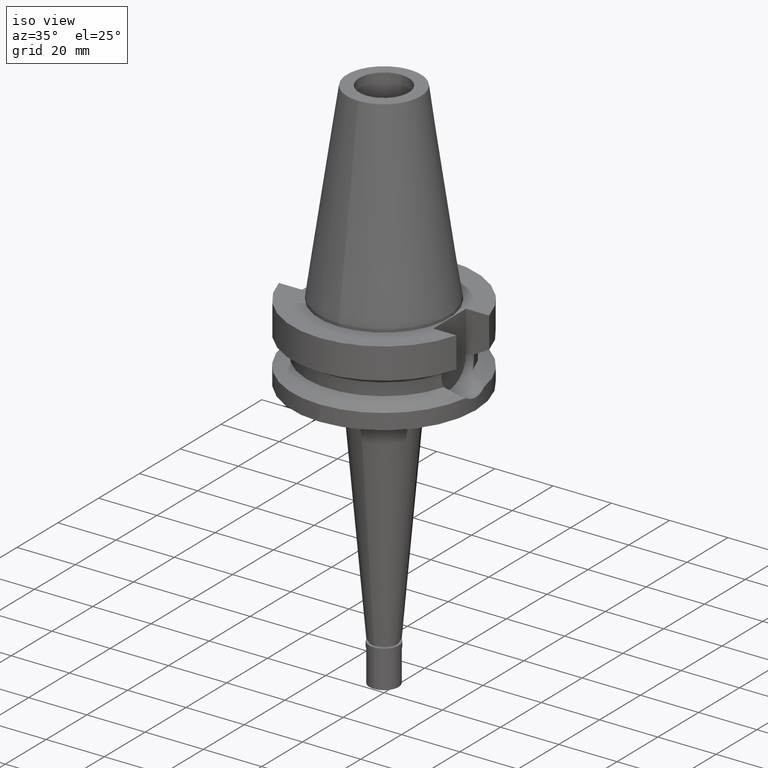
[diagram: clean part render]
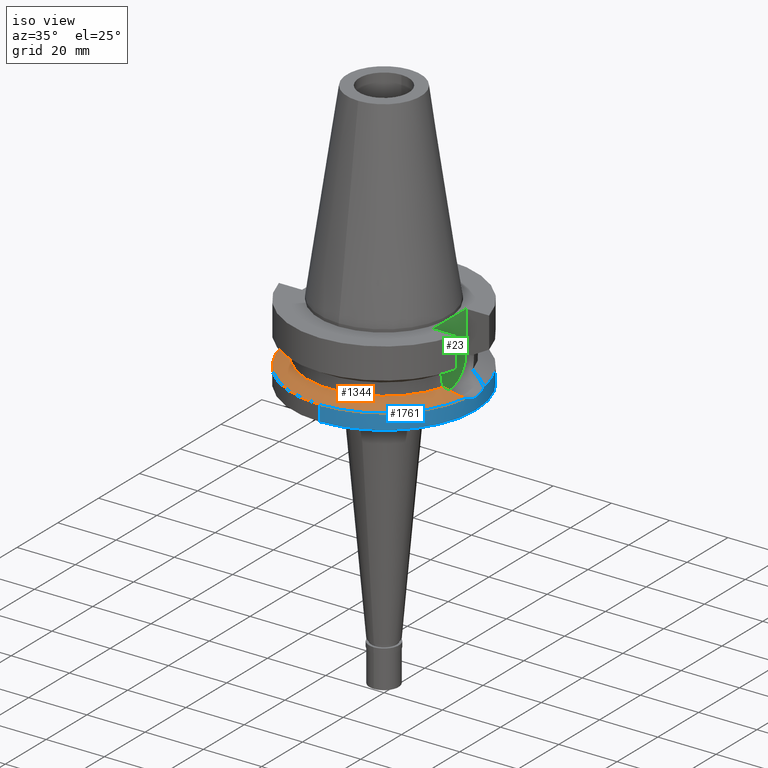
[diagram: same view with three faces highlighted in distinct colors, each labeled with its STEP entity id]
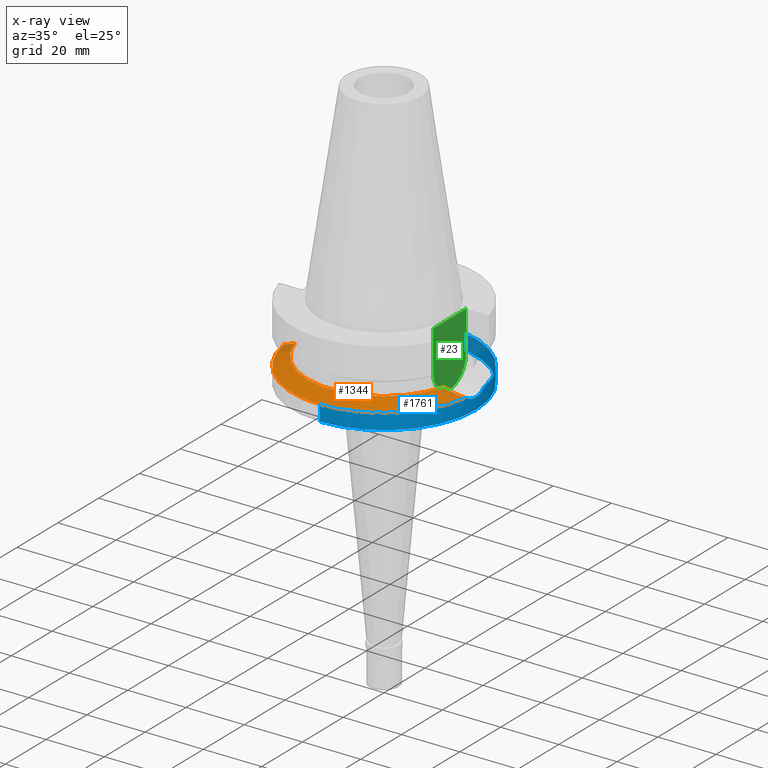
[diagram: x-ray of the same camera — body ghosted, the three highlighted faces saturated]
A machine part, iso view with three faces highlighted in distinct colors.
The next image is the same camera in x-ray (body ghosted, the three faces saturated) — at least one of them is partly hidden behind the body in this view.
Their STEP definitions:

[orange] entity #1344 — the highlighted conical surface has half-angle 60 deg.
#43 = DIRECTION ( 'NONE',  ( 0.0000000000000000000, 0.0000000000000000000, -1.000000000000000000 ) ) ;
#52 = CARTESIAN_POINT ( 'NONE',  ( -27.66923168270367839, -6.418355678338386383, -19.84419804764732831 ) ) ;
#178 = DIRECTION ( 'NONE',  ( -0.9634623335000935818, -0.2678438573619981722, 0.0000000000000000000 ) ) ;
#208 = CARTESIAN_POINT ( 'NONE',  ( 0.0000000000000000000, 0.0000000000000000000, -18.74774300138999905 ) ) ;
#225 = CARTESIAN_POINT ( 'NONE',  ( -28.64526499557311823, -5.976604019844140581, -20.34291875265063254 ) ) ;
#233 = CARTESIAN_POINT ( 'NONE',  ( 28.35327672572121216, -6.108695028975740904, -20.19338929592815646 ) ) ;
#237 = DIRECTION ( 'NONE',  ( 0.0000000000000000000, 0.0000000000000000000, -1.000000000000000000 ) ) ;
#271 = CARTESIAN_POINT ( 'NONE',  ( 26.16758111891441985, -6.923083646073821207, -19.07439865895905839 ) ) ;
#314 = CARTESIAN_POINT ( 'NONE',  ( 0.0000000000000000000, -31.50000000000000000, -21.63449434733000132 ) ) ;
#435 = ORIENTED_EDGE ( 'NONE', *, *, #2005, .F. ) ;
#463 = CIRCLE ( 'NONE', #2674, 31.50000000000000000 ) ;
#501 = CARTESIAN_POINT ( 'NONE',  ( -29.52702429806037543, -5.539940414574471284, -20.79313038544429304 ) ) ;
#525 = B_SPLINE_CURVE_WITH_KNOTS ( 'NONE', 3,
 ( #754, #2581, #2596, #1607, #501, #1665, #744, #2126, #225, #1827, #1404, #2114, #1171, #52, #2553, #1376 ),
 .UNSPECIFIED., .F., .F.,
 ( 4, 2, 2, 1, 1, 1, 1, 2, 2, 4 ),
 ( 0.0000000000000000000, 0.2499999999999527045, 0.3749999999999296674, 0.4374999999999184541, 0.4687499999999134026, 0.4843749999999115152, 0.4921874999999115152, 0.4960937499999116818, 0.4999999999999119593, 1.000000000000000000 ),
 .UNSPECIFIED. ) ;
#654 = ORIENTED_EDGE ( 'NONE', *, *, #1530, .F. ) ;
#726 = AXIS2_PLACEMENT_3D ( 'NONE', #1190, #43, #1409 ) ;
#733 = CARTESIAN_POINT ( 'NONE',  ( 28.71614756699908710, -5.944580103074494026, -20.37870454098128903 ) ) ;
#744 = CARTESIAN_POINT ( 'NONE',  ( -28.98042808992395436, -5.818649135274985618, -20.51412779464057934 ) ) ;
#754 = CARTESIAN_POINT ( 'NONE',  ( -31.17899877608999759, -4.485536235554000051, -21.63449434733000132 ) ) ;
#1049 = EDGE_CURVE ( 'NONE', #2364, #2929, #2504, .T. ) ;
#1139 = CIRCLE ( 'NONE', #2282, 26.49999999999998224 ) ;
#1171 = CARTESIAN_POINT ( 'NONE',  ( -28.53802843560052693, -6.025522421294017050, -20.28812707477617394 ) ) ;
#1190 = CARTESIAN_POINT ( 'NONE',  ( 0.0000000000000000000, 0.0000000000000000000, -21.63449434733000132 ) ) ;
#1211 = CARTESIAN_POINT ( 'NONE',  ( 0.0000000000000000000, 0.0000000000000000000, -20.19111867435999841 ) ) ;
#1285 = CARTESIAN_POINT ( 'NONE',  ( -31.17899877608999759, -4.485536235554000051, -21.63449434733000132 ) ) ;
#1322 = CARTESIAN_POINT ( 'NONE',  ( 0.0000000000000000000, 0.0000000000000000000, -21.63449434733000132 ) ) ;
#1344 = ADVANCED_FACE ( 'NONE', ( #2852 ), #2333, .T. ) ;
#1376 = CARTESIAN_POINT ( 'NONE',  ( -25.53175183775000079, -7.097862220092999941, -18.74774300138999905 ) ) ;
#1404 = CARTESIAN_POINT ( 'NONE',  ( -28.56396734956526728, -6.013755435471196620, -20.30138081996641830 ) ) ;
#1408 = CARTESIAN_POINT ( 'NONE',  ( 28.59590262570323560, -6.000111666179638092, -20.31730344391500509 ) ) ;
#1409 = DIRECTION ( 'NONE',  ( 0.9898094849552905306, -0.1423979757318985240, 0.0000000000000000000 ) ) ;
#1432 = CARTESIAN_POINT ( 'NONE',  ( 26.76038826259300762, -6.731321514917747884, -19.37857400506706540 ) ) ;
#1435 = VERTEX_POINT ( 'NONE', #1718 ) ;
#1448 = CARTESIAN_POINT ( 'NONE',  ( -25.53175183775000079, -7.097862220092999941, -18.74774300138999905 ) ) ;
#1530 = EDGE_CURVE ( 'NONE', #2068, #1435, #1139, .T. ) ;
#1547 = CARTESIAN_POINT ( 'NONE',  ( 30.52782197189510782, -4.979563659789108421, -21.30298416905803904 ) ) ;
#1607 = CARTESIAN_POINT ( 'NONE',  ( -29.75795388173753508, -5.412905063019707086, -20.91089799567518526 ) ) ;
#1608 = CARTESIAN_POINT ( 'NONE',  ( 27.84920274060711876, -6.322347482687470155, -19.93583393079281407 ) ) ;
#1665 = CARTESIAN_POINT ( 'NONE',  ( -29.16519869690874955, -5.726424710368712923, -20.60846385170595241 ) ) ;
#1718 = CARTESIAN_POINT ( 'NONE',  ( 25.53175183775000079, -7.097862220092999941, -18.74774300138999905 ) ) ;
#1743 = EDGE_CURVE ( 'NONE', #2277, #2068, #525, .T. ) ;
#1767 = B_SPLINE_CURVE_WITH_KNOTS ( 'NONE', 3,
 ( #2569, #271, #1432, #2803, #1608, #2127, #233, #1408, #733, #2314, #1547, #2045 ),
 .UNSPECIFIED., .F., .F.,
 ( 4, 2, 2, 2, 2, 4 ),
 ( 0.0000000000000000000, 0.2500000000000017764, 0.3750000000000029976, 0.4375000000000036082, 0.5000000000000042188, 1.000000000000000000 ),
 .UNSPECIFIED. ) ;
#1827 = CARTESIAN_POINT ( 'NONE',  ( -28.58841993550401739, -6.002629741559436738, -20.31387488415084519 ) ) ;
#1899 = ORIENTED_EDGE ( 'NONE', *, *, #1743, .F. ) ;
#1995 = AXIS2_PLACEMENT_3D ( 'NONE', #1211, #2147, #2121 ) ;
#2005 = EDGE_CURVE ( 'NONE', #1435, #2364, #1767, .T. ) ;
#2045 = CARTESIAN_POINT ( 'NONE',  ( 31.17899877608999759, -4.485536235554000051, -21.63449434733000132 ) ) ;
#2068 = VERTEX_POINT ( 'NONE', #1448 ) ;
#2114 = CARTESIAN_POINT ( 'NONE',  ( -28.54764553286440076, -6.021166268360699902, -20.29304107103054378 ) ) ;
#2121 = DIRECTION ( 'NONE',  ( 0.0000000000000000000, -1.000000000000000000, 0.0000000000000000000 ) ) ;
#2126 = CARTESIAN_POINT ( 'NONE',  ( -28.75811122055934987, -5.924292236818231139, -20.40057044343104309 ) ) ;
#2127 = CARTESIAN_POINT ( 'NONE',  ( 28.22927489213733665, -6.162517930489570084, -20.13004847233275640 ) ) ;
#2147 = DIRECTION ( 'NONE',  ( 0.0000000000000000000, 0.0000000000000000000, -1.000000000000000000 ) ) ;
#2277 = VERTEX_POINT ( 'NONE', #1285 ) ;
#2282 = AXIS2_PLACEMENT_3D ( 'NONE', #208, #2948, #178 ) ;
#2314 = CARTESIAN_POINT ( 'NONE',  ( 29.74497633816733710, -5.455130845604892365, -20.90411165047239095 ) ) ;
#2322 = ORIENTED_EDGE ( 'NONE', *, *, #2476, .F. ) ;
#2333 = CONICAL_SURFACE ( 'NONE', #1995, 29.00000000000000000, 1.047197551196400456 ) ;
#2364 = VERTEX_POINT ( 'NONE', #2515 ) ;
#2476 = EDGE_CURVE ( 'NONE', #2929, #2277, #463, .T. ) ;
#2504 = CIRCLE ( 'NONE', #726, 31.50000000000001421 ) ;
#2515 = CARTESIAN_POINT ( 'NONE',  ( 31.17899877608999759, -4.485536235554000051, -21.63449434733000132 ) ) ;
#2553 = CARTESIAN_POINT ( 'NONE',  ( -26.66938443627002187, -6.785146512881143011, -19.33219882239237464 ) ) ;
#2569 = CARTESIAN_POINT ( 'NONE',  ( 25.53175183775000079, -7.097862220092999941, -18.74774300138999905 ) ) ;
#2581 = CARTESIAN_POINT ( 'NONE',  ( -30.82001444630813936, -4.757886390910957886, -21.45173759309954420 ) ) ;
#2596 = CARTESIAN_POINT ( 'NONE',  ( -30.41988018149731587, -5.025176161912223272, -21.24821316614367461 ) ) ;
#2645 = ORIENTED_EDGE ( 'NONE', *, *, #1049, .F. ) ;
#2661 = EDGE_LOOP ( 'NONE', ( #2322, #2645, #435, #654, #1899 ) ) ;
#2674 = AXIS2_PLACEMENT_3D ( 'NONE', #1322, #237, #2719 ) ;
#2719 = DIRECTION ( 'NONE',  ( 0.0000000000000000000, -1.000000000000000000, 0.0000000000000000000 ) ) ;
#2803 = CARTESIAN_POINT ( 'NONE',  ( 27.58506577188217079, -6.426717536307814171, -19.80076447298786135 ) ) ;
#2852 = FACE_OUTER_BOUND ( 'NONE', #2661, .T. ) ;
#2929 = VERTEX_POINT ( 'NONE', #314 ) ;
#2948 = DIRECTION ( 'NONE',  ( 0.0000000000000000000, 0.0000000000000000000, 1.000000000000000000 ) ) ;

[blue] entity #1761 — the highlighted cylindrical surface (partial cylindrical patch) has radius 31.5 mm, axis along (0, 0, -1).
#27 = EDGE_CURVE ( 'NONE', #170, #490, #2061, .T. ) ;
#43 = DIRECTION ( 'NONE',  ( 0.0000000000000000000, 0.0000000000000000000, -1.000000000000000000 ) ) ;
#47 = CARTESIAN_POINT ( 'NONE',  ( 31.27811616776916281, -3.746663410095390834, -22.08609477296984025 ) ) ;
#78 = CARTESIAN_POINT ( 'NONE',  ( 0.0000000000000000000, -31.50000000000000000, -27.00000000000000000 ) ) ;
#145 = CARTESIAN_POINT ( 'NONE',  ( 0.0000000000000000000, -31.50000000000000000, -21.63449434733000132 ) ) ;
#170 = VERTEX_POINT ( 'NONE', #1307 ) ;
#195 = CARTESIAN_POINT ( 'NONE',  ( 31.49278356123978639, 0.7711873036931051750, -22.97267690001503126 ) ) ;
#209 = CARTESIAN_POINT ( 'NONE',  ( 31.33671814113539611, -3.204274407590857354, -22.33747821317917825 ) ) ;
#232 = AXIS2_PLACEMENT_3D ( 'NONE', #1685, #298, #959 ) ;
#279 = ORIENTED_EDGE ( 'NONE', *, *, #2904, .T. ) ;
#298 = DIRECTION ( 'NONE',  ( 0.0000000000000000000, 0.0000000000000000000, -1.000000000000000000 ) ) ;
#314 = CARTESIAN_POINT ( 'NONE',  ( 0.0000000000000000000, -31.50000000000000000, -21.63449434733000132 ) ) ;
#414 = CARTESIAN_POINT ( 'NONE',  ( 31.36324472114687012, 3.008186403774371076, -22.45010119731899678 ) ) ;
#419 = VERTEX_POINT ( 'NONE', #78 ) ;
#430 = CARTESIAN_POINT ( 'NONE',  ( 31.50000030226999570, 4.155497312099999586E-14, -23.00000138148999795 ) ) ;
#431 = CARTESIAN_POINT ( 'NONE',  ( 31.41250465254752555, -2.344685119766516834, -22.65098129005198757 ) ) ;
#482 = CARTESIAN_POINT ( 'NONE',  ( 31.40205153632066271, -2.481143929224092659, -22.60832449609318218 ) ) ;
#490 = VERTEX_POINT ( 'NONE', #1346 ) ;
#620 = CARTESIAN_POINT ( 'NONE',  ( 31.50000030226999570, 4.155497312099999586E-14, -23.00000138148999795 ) ) ;
#628 = ORIENTED_EDGE ( 'NONE', *, *, #27, .T. ) ;
#637 = CARTESIAN_POINT ( 'NONE',  ( 31.41418307691938594, 2.322078179474600379, -22.65782554032587370 ) ) ;
#666 = CARTESIAN_POINT ( 'NONE',  ( 31.43707934141286131, 1.991785373851441276, -22.75083979994500183 ) ) ;
#667 = CARTESIAN_POINT ( 'NONE',  ( 31.35450367999159127, -3.025551444394471989, -22.41216023106509425 ) ) ;
#726 = AXIS2_PLACEMENT_3D ( 'NONE', #1190, #43, #1409 ) ;
#816 = CARTESIAN_POINT ( 'NONE',  ( 0.0000000000000000000, 2.136824967491999859E-14, -27.00000000000000000 ) ) ;
#889 = CARTESIAN_POINT ( 'NONE',  ( 31.28511117654104368, 3.747948078862596955, -22.12944254114498577 ) ) ;
#891 = B_SPLINE_CURVE_WITH_KNOTS ( 'NONE', 3,
 ( #2334, #1196, #47, #209, #667, #2043, #1574, #482, #1180, #1838, #2503, #431, #1359, #2769, #1810 ),
 .UNSPECIFIED., .F., .F.,
 ( 4, 2, 2, 1, 1, 1, 2, 2, 4 ),
 ( 0.0000000000000000000, 0.2499999999999968914, 0.3749999999999954481, 0.4374999999999949485, 0.4687499999999946709, 0.4843749999999942824, 0.4921874999999941713, 0.4999999999999940048, 1.000000000000000000 ),
 .UNSPECIFIED. ) ;
#959 = DIRECTION ( 'NONE',  ( 0.0000000000000000000, 1.000000000000000000, 0.0000000000000000000 ) ) ;
#972 = FACE_OUTER_BOUND ( 'NONE', #975, .T. ) ;
#975 = EDGE_LOOP ( 'NONE', ( #1534, #279, #1582, #1162, #628, #2613, #2268 ) ) ;
#1049 = EDGE_CURVE ( 'NONE', #2364, #2929, #2504, .T. ) ;
#1062 = LINE ( 'NONE', #2216, #2770 ) ;
#1158 = CARTESIAN_POINT ( 'NONE',  ( 0.0000000000000000000, 2.136824967491999859E-14, 74.48499999999999943 ) ) ;
#1162 = ORIENTED_EDGE ( 'NONE', *, *, #1224, .F. ) ;
#1180 = CARTESIAN_POINT ( 'NONE',  ( 31.40782472142112525, -2.406637570805186588, -22.63189169567860759 ) ) ;
#1190 = CARTESIAN_POINT ( 'NONE',  ( 0.0000000000000000000, 0.0000000000000000000, -21.63449434733000132 ) ) ;
#1196 = CARTESIAN_POINT ( 'NONE',  ( 31.23205437646138805, -4.116746326772162234, -21.88196564631180152 ) ) ;
#1204 = VERTEX_POINT ( 'NONE', #2933 ) ;
#1224 = EDGE_CURVE ( 'NONE', #170, #1204, #1062, .T. ) ;
#1262 = EDGE_CURVE ( 'NONE', #2364, #1535, #891, .T. ) ;
#1293 = LINE ( 'NONE', #145, #1428 ) ;
#1307 = CARTESIAN_POINT ( 'NONE',  ( 0.0000000000000000000, 31.50000000000000000, -21.63449434733000132 ) ) ;
#1314 = CARTESIAN_POINT ( 'NONE',  ( 31.42563404118526549, 2.162357063322922546, -22.70443063266573347 ) ) ;
#1346 = CARTESIAN_POINT ( 'NONE',  ( 31.17899877608999759, 4.485536235554000051, -21.63449434733000132 ) ) ;
#1359 = CARTESIAN_POINT ( 'NONE',  ( 31.47113575803165730, -1.554964651850658353, -22.89006402801799211 ) ) ;
#1409 = DIRECTION ( 'NONE',  ( 0.9898094849552905306, -0.1423979757318985240, 0.0000000000000000000 ) ) ;
#1428 = VECTOR ( 'NONE', #2908, 1000.000000000000000 ) ;
#1510 = AXIS2_PLACEMENT_3D ( 'NONE', #1158, #2802, #1878 ) ;
#1516 = DIRECTION ( 'NONE',  ( 0.0000000000000000000, 1.099151708819000049E-13, -1.000000000000000000 ) ) ;
#1529 = CARTESIAN_POINT ( 'NONE',  ( 31.47113333814916558, 1.356640495981120020, -22.88731189947309730 ) ) ;
#1534 = ORIENTED_EDGE ( 'NONE', *, *, #1049, .T. ) ;
#1535 = VERTEX_POINT ( 'NONE', #430 ) ;
#1555 = CARTESIAN_POINT ( 'NONE',  ( 31.50000030227001346, 0.3826090918744618485, -23.00000000000000000 ) ) ;
#1574 = CARTESIAN_POINT ( 'NONE',  ( 31.38993145521997619, -2.631335983103371579, -22.55874663190619955 ) ) ;
#1580 = EDGE_CURVE ( 'NONE', #1535, #490, #2252, .T. ) ;
#1582 = ORIENTED_EDGE ( 'NONE', *, *, #2287, .T. ) ;
#1685 = CARTESIAN_POINT ( 'NONE',  ( 0.0000000000000000000, 0.0000000000000000000, -21.63449434733000132 ) ) ;
#1751 = CIRCLE ( 'NONE', #2775, 31.50000000000000000 ) ;
#1761 = ADVANCED_FACE ( 'NONE', ( #972 ), #2292, .T. ) ;
#1765 = CARTESIAN_POINT ( 'NONE',  ( 31.41519654756638857, 2.308329250117757248, -22.66195675238899199 ) ) ;
#1791 = CARTESIAN_POINT ( 'NONE',  ( 31.17899877608999759, 4.485536235554000051, -21.63449434733000132 ) ) ;
#1810 = CARTESIAN_POINT ( 'NONE',  ( 31.50000030226999570, 4.155497312099999586E-14, -23.00000138148999795 ) ) ;
#1838 = CARTESIAN_POINT ( 'NONE',  ( 31.41023747458205406, -2.374835805099700714, -22.64173436498732883 ) ) ;
#1878 = DIRECTION ( 'NONE',  ( 0.0000000000000000000, -1.000000000000000000, 0.0000000000000000000 ) ) ;
#1998 = CARTESIAN_POINT ( 'NONE',  ( 31.41961539192765329, 2.247536052731850198, -22.67995511559495014 ) ) ;
#2043 = CARTESIAN_POINT ( 'NONE',  ( 31.37855930987701214, -2.761990093449054218, -22.51192666837500411 ) ) ;
#2061 = CIRCLE ( 'NONE', #232, 31.50000000000000000 ) ;
#2193 = DIRECTION ( 'NONE',  ( 0.0000000000000000000, 0.0000000000000000000, 1.000000000000000000 ) ) ;
#2216 = CARTESIAN_POINT ( 'NONE',  ( 0.0000000000000000000, 31.50000000000000000, -21.63449434733000132 ) ) ;
#2252 = B_SPLINE_CURVE_WITH_KNOTS ( 'NONE', 3,
 ( #620, #1555, #195, #1529, #2263, #2461, #666, #1314, #1998, #2916, #1765, #637, #414, #889, #1791 ),
 .UNSPECIFIED., .F., .F.,
 ( 4, 2, 2, 1, 1, 1, 2, 2, 4 ),
 ( 0.0000000000000000000, 0.2500000000000022204, 0.3750000000000032752, 0.4375000000000036637, 0.4687500000000037192, 0.4843750000000038858, 0.4921875000000038303, 0.5000000000000036637, 1.000000000000000000 ),
 .UNSPECIFIED. ) ;
#2263 = CARTESIAN_POINT ( 'NONE',  ( 31.46211241186140484, 1.552211430835110706, -22.85146869852459872 ) ) ;
#2268 = ORIENTED_EDGE ( 'NONE', *, *, #1262, .F. ) ;
#2287 = EDGE_CURVE ( 'NONE', #419, #1204, #1751, .T. ) ;
#2292 = CYLINDRICAL_SURFACE ( 'NONE', #1510, 31.50000000000000000 ) ;
#2334 = CARTESIAN_POINT ( 'NONE',  ( 31.17899877608999759, -4.485536235554000051, -21.63449434733000132 ) ) ;
#2364 = VERTEX_POINT ( 'NONE', #2515 ) ;
#2461 = CARTESIAN_POINT ( 'NONE',  ( 31.44587474454343123, 1.845305156543991520, -22.78628520787604472 ) ) ;
#2503 = CARTESIAN_POINT ( 'NONE',  ( 31.41183231690602184, -2.353663757154063507, -22.64823938059670283 ) ) ;
#2504 = CIRCLE ( 'NONE', #726, 31.50000000000001421 ) ;
#2515 = CARTESIAN_POINT ( 'NONE',  ( 31.17899877608999759, -4.485536235554000051, -21.63449434733000132 ) ) ;
#2613 = ORIENTED_EDGE ( 'NONE', *, *, #1580, .F. ) ;
#2694 = DIRECTION ( 'NONE',  ( 0.0000000000000000000, -1.000000000000000000, 0.0000000000000000000 ) ) ;
#2769 = CARTESIAN_POINT ( 'NONE',  ( 31.50000030226999925, -0.7652255575721648162, -23.00000000000000000 ) ) ;
#2770 = VECTOR ( 'NONE', #1516, 1000.000000000000000 ) ;
#2775 = AXIS2_PLACEMENT_3D ( 'NONE', #816, #2193, #2694 ) ;
#2802 = DIRECTION ( 'NONE',  ( 0.0000000000000000000, 0.0000000000000000000, -1.000000000000000000 ) ) ;
#2904 = EDGE_CURVE ( 'NONE', #2929, #419, #1293, .T. ) ;
#2908 = DIRECTION ( 'NONE',  ( 0.0000000000000000000, -1.105773104655000034E-13, -1.000000000000000000 ) ) ;
#2916 = CARTESIAN_POINT ( 'NONE',  ( 31.41697254242930271, 2.284015593820755363, -22.66919255135217526 ) ) ;
#2929 = VERTEX_POINT ( 'NONE', #314 ) ;
#2933 = CARTESIAN_POINT ( 'NONE',  ( 0.0000000000000000000, 31.50000000000000000, -27.00000000000000000 ) ) ;

[green] entity #23 — the highlighted planar face has unit normal (1, 0, 0).
#23 = ADVANCED_FACE ( 'NONE', ( #288 ), #2572, .T. ) ;
#51 = AXIS2_PLACEMENT_3D ( 'NONE', #1944, #2425, #579 ) ;
#173 = VECTOR ( 'NONE', #990, 1000.000000000000000 ) ;
#215 = CARTESIAN_POINT ( 'NONE',  ( 22.50000000000000000, -8.050000000000000711, -14.94999999999999929 ) ) ;
#288 = FACE_OUTER_BOUND ( 'NONE', #1641, .T. ) ;
#531 = ORIENTED_EDGE ( 'NONE', *, *, #986, .F. ) ;
#546 = CARTESIAN_POINT ( 'NONE',  ( 22.50000000000000000, 8.050000000000000711, -14.94999999999999929 ) ) ;
#579 = DIRECTION ( 'NONE',  ( 0.0000000000000000000, 0.0000000000000000000, -1.000000000000000000 ) ) ;
#673 = VERTEX_POINT ( 'NONE', #1992 ) ;
#780 = EDGE_CURVE ( 'NONE', #1343, #1561, #1349, .T. ) ;
#815 = AXIS2_PLACEMENT_3D ( 'NONE', #989, #1417, #2100 ) ;
#986 = EDGE_CURVE ( 'NONE', #1561, #673, #2762, .T. ) ;
#989 = CARTESIAN_POINT ( 'NONE',  ( 22.50000000000000000, 0.0000000000000000000, 0.0000000000000000000 ) ) ;
#990 = DIRECTION ( 'NONE',  ( 0.0000000000000000000, -1.000000000000000000, 0.0000000000000000000 ) ) ;
#1147 = DIRECTION ( 'NONE',  ( 0.0000000000000000000, 0.0000000000000000000, 1.000000000000000000 ) ) ;
#1221 = LINE ( 'NONE', #1660, #1845 ) ;
#1343 = VERTEX_POINT ( 'NONE', #546 ) ;
#1349 = CIRCLE ( 'NONE', #51, 8.050000000000000711 ) ;
#1354 = EDGE_CURVE ( 'NONE', #1557, #1343, #1221, .T. ) ;
#1417 = DIRECTION ( 'NONE',  ( 1.000000000000000000, 0.0000000000000000000, 0.0000000000000000000 ) ) ;
#1557 = VERTEX_POINT ( 'NONE', #2723 ) ;
#1561 = VERTEX_POINT ( 'NONE', #2679 ) ;
#1581 = VECTOR ( 'NONE', #1147, 1000.000000000000000 ) ;
#1641 = EDGE_LOOP ( 'NONE', ( #531, #2747, #1930, #2807 ) ) ;
#1660 = CARTESIAN_POINT ( 'NONE',  ( 22.50000000000000000, 8.050000000000000711, -1.000000000000000000 ) ) ;
#1845 = VECTOR ( 'NONE', #2591, 1000.000000000000000 ) ;
#1930 = ORIENTED_EDGE ( 'NONE', *, *, #1354, .F. ) ;
#1944 = CARTESIAN_POINT ( 'NONE',  ( 22.50000000000000000, 0.0000000000000000000, -14.94999999999999929 ) ) ;
#1992 = CARTESIAN_POINT ( 'NONE',  ( 22.50000000000000000, -8.050000000000000711, -1.000000000000000000 ) ) ;
#2100 = DIRECTION ( 'NONE',  ( 0.0000000000000000000, 1.000000000000000000, 0.0000000000000000000 ) ) ;
#2120 = CARTESIAN_POINT ( 'NONE',  ( 22.50000000000000000, 8.050000000000000711, -1.000000000000000000 ) ) ;
#2425 = DIRECTION ( 'NONE',  ( -1.000000000000000000, 0.0000000000000000000, 0.0000000000000000000 ) ) ;
#2564 = EDGE_CURVE ( 'NONE', #1557, #673, #2793, .T. ) ;
#2572 = PLANE ( 'NONE',  #815 ) ;
#2591 = DIRECTION ( 'NONE',  ( 0.0000000000000000000, 0.0000000000000000000, -1.000000000000000000 ) ) ;
#2679 = CARTESIAN_POINT ( 'NONE',  ( 22.50000000000000000, -8.050000000000000711, -14.94999999999999929 ) ) ;
#2723 = CARTESIAN_POINT ( 'NONE',  ( 22.50000000000000000, 8.050000000000000711, -1.000000000000000000 ) ) ;
#2747 = ORIENTED_EDGE ( 'NONE', *, *, #780, .F. ) ;
#2762 = LINE ( 'NONE', #215, #1581 ) ;
#2793 = LINE ( 'NONE', #2120, #173 ) ;
#2807 = ORIENTED_EDGE ( 'NONE', *, *, #2564, .T. ) ;